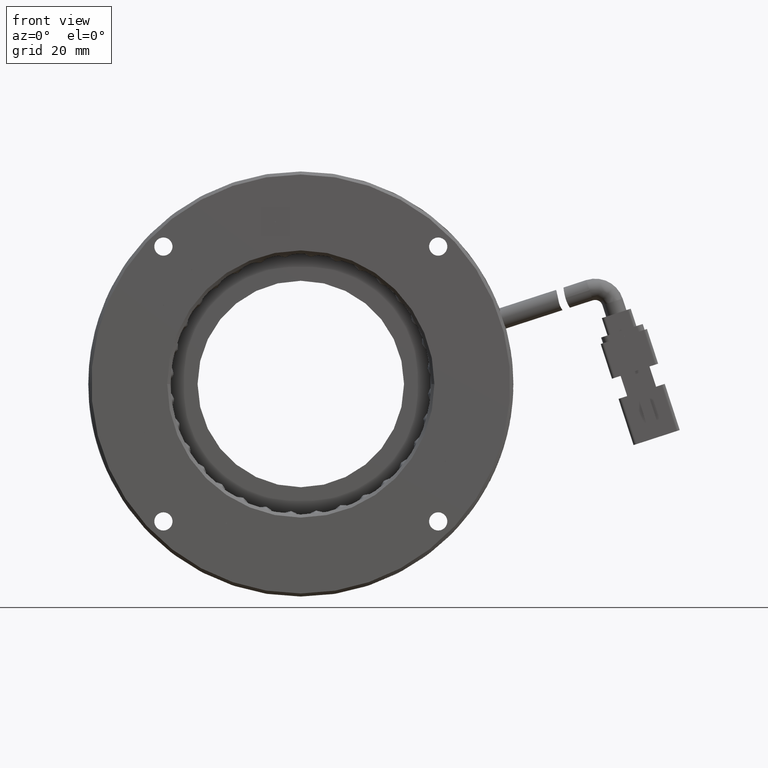
[diagram: clean part render]
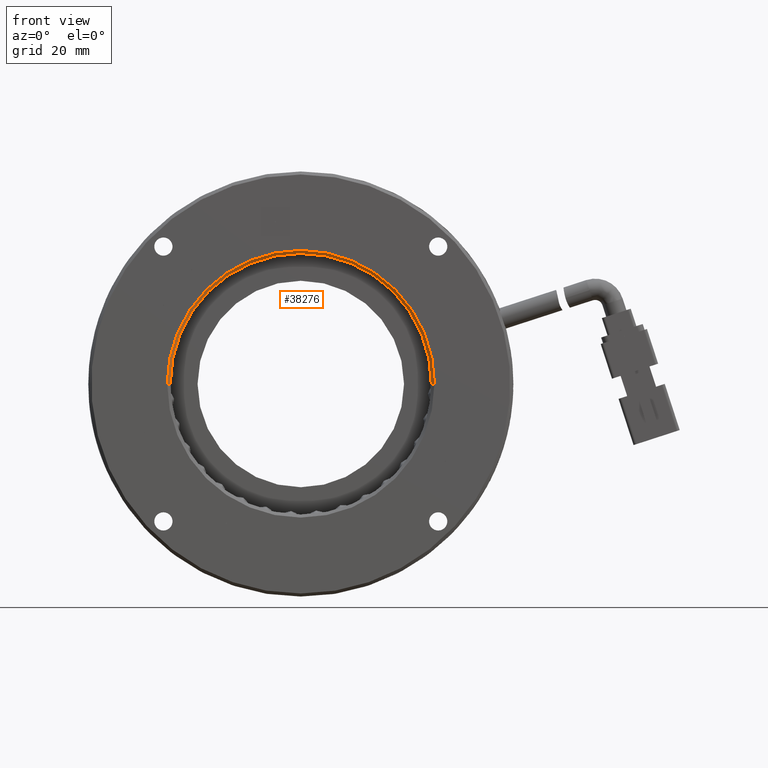
[diagram: same view with one face highlighted and labeled with its STEP entity id]
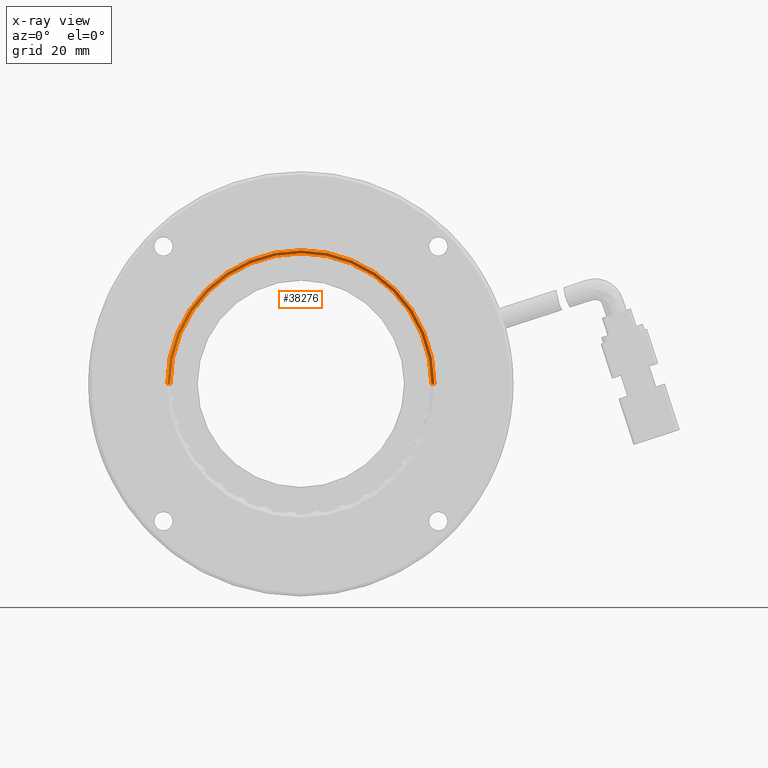
[diagram: x-ray of the same camera — body ghosted, the highlighted face saturated]
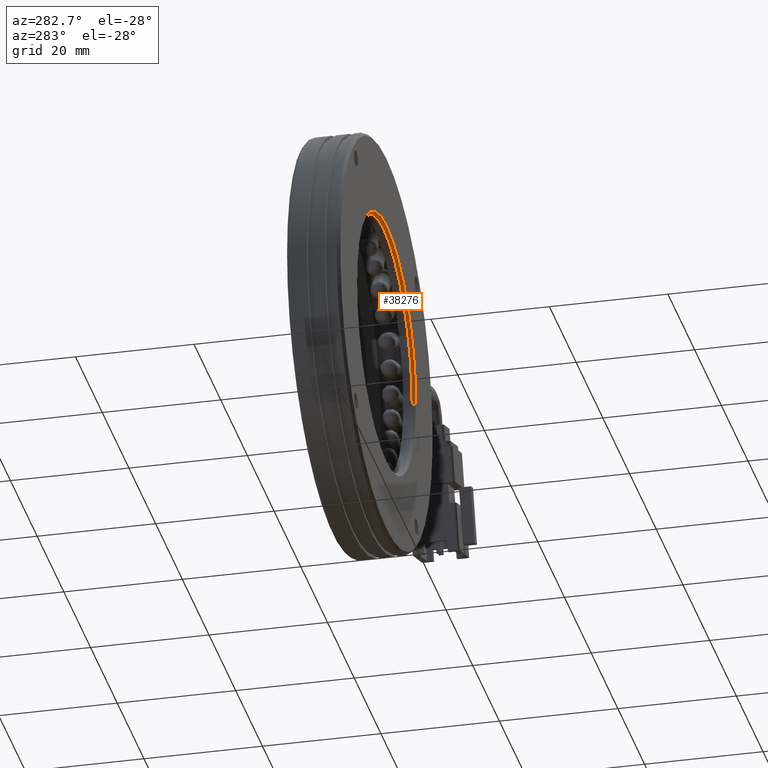
[diagram: same view with one face highlighted and labeled with its STEP entity id]
A machine part, front view. The second image highlights one B-rep face of the part: STEP entity #38276.
The next image is the same camera in x-ray: the body ghosted, the highlighted face saturated — about 0% of this face is hidden behind the body in this view.
A second angle (auxiliary view) of the same face is appended — the face is thin or edge-on in the first view.
In plain terms, the highlighted conical surface has half-angle 45 deg.
Its self-contained STEP definition (entity closure, byte-faithful):
#2677 = ORIENTED_EDGE ( 'NONE', *, *, #39413, .F. ) ;
#3210 = FACE_OUTER_BOUND ( 'NONE', #5450, .T. ) ;
#3448 = ORIENTED_EDGE ( 'NONE', *, *, #25605, .T. ) ;
#3782 = DIRECTION ( 'NONE',  ( 1.000000000000000000, -1.577021341797097600E-016, 0.0000000000000000000 ) ) ;
#4822 = CARTESIAN_POINT ( 'NONE',  ( 16.29070785509543000, 4.260202915404253300, 0.0000000000000000000 ) ) ;
#5057 = ORIENTED_EDGE ( 'NONE', *, *, #39107, .F. ) ;
#5168 = CARTESIAN_POINT ( 'NONE',  ( -27.70929214490455900, 4.260202915404260400, 2.694222958124176400E-015 ) ) ;
#5450 = EDGE_LOOP ( 'NONE', ( #5057, #10771, #2677, #3448, #35615 ) ) ;
#6749 = VERTEX_POINT ( 'NONE', #10425 ) ;
#7036 = LINE ( 'NONE', #11527, #35226 ) ;
#10015 = CIRCLE ( 'NONE', #28597, 21.99999999999999600 ) ;
#10425 = CARTESIAN_POINT ( 'NONE',  ( -27.20929214490456600, 4.760202915404257800, 2.663606788145493000E-015 ) ) ;
#10771 = ORIENTED_EDGE ( 'NONE', *, *, #12650, .F. ) ;
#11398 = CARTESIAN_POINT ( 'NONE',  ( -5.709292144904565300, 4.760202915404257800, 0.0000000000000000000 ) ) ;
#11527 = CARTESIAN_POINT ( 'NONE',  ( 16.29070785509543000, 4.260202915404253300, 0.0000000000000000000 ) ) ;
#11544 = VECTOR ( 'NONE', #34849, 1000.000000000000000 ) ;
#12522 = LINE ( 'NONE', #31754, #11544 ) ;
#12650 = EDGE_CURVE ( 'NONE', #36407, #6749, #36414, .T. ) ;
#13662 = DIRECTION ( 'NONE',  ( -1.577021341797097600E-016, -1.000000000000000000, 0.0000000000000000000 ) ) ;
#13839 = AXIS2_PLACEMENT_3D ( 'NONE', #11398, #33197, #14536 ) ;
#14536 = DIRECTION ( 'NONE',  ( 0.0000000000000000000, 0.0000000000000000000, -1.000000000000000000 ) ) ;
#17144 = AXIS2_PLACEMENT_3D ( 'NONE', #25318, #31635, #3782 ) ;
#17652 = DIRECTION ( 'NONE',  ( 0.7071067811865425800, -0.7071067811865525700, 0.0000000000000000000 ) ) ;
#18434 = CARTESIAN_POINT ( 'NONE',  ( -5.709292144904565300, 4.760202915404257800, 0.0000000000000000000 ) ) ;
#19839 = CARTESIAN_POINT ( 'NONE',  ( 15.79070785509543600, 4.760202915404257800, 0.0000000000000000000 ) ) ;
#21063 = VERTEX_POINT ( 'NONE', #5168 ) ;
#21577 = DIRECTION ( 'NONE',  ( 0.0000000000000000000, 0.0000000000000000000, -1.000000000000000000 ) ) ;
#23057 = CONICAL_SURFACE ( 'NONE', #17144, 21.99999999999999600, 0.7853981633974415100 ) ;
#23976 = VERTEX_POINT ( 'NONE', #4822 ) ;
#25318 = CARTESIAN_POINT ( 'NONE',  ( -5.709292144904565300, 4.260202915404256900, 0.0000000000000000000 ) ) ;
#25605 = EDGE_CURVE ( 'NONE', #32898, #23976, #7036, .T. ) ;
#28597 = AXIS2_PLACEMENT_3D ( 'NONE', #32340, #13662, #35435 ) ;
#31635 = DIRECTION ( 'NONE',  ( -1.577021341797097600E-016, -1.000000000000000000, 0.0000000000000000000 ) ) ;
#31754 = CARTESIAN_POINT ( 'NONE',  ( -27.70929214490455900, 4.260202915404260400, 2.694222958124176400E-015 ) ) ;
#31998 = AXIS2_PLACEMENT_3D ( 'NONE', #18434, #40281, #21577 ) ;
#32340 = CARTESIAN_POINT ( 'NONE',  ( -5.709292144904565300, 4.260202915404256900, 0.0000000000000000000 ) ) ;
#32898 = VERTEX_POINT ( 'NONE', #19839 ) ;
#33197 = DIRECTION ( 'NONE',  ( 0.0000000000000000000, -1.000000000000000000, 0.0000000000000000000 ) ) ;
#33678 = CARTESIAN_POINT ( 'NONE',  ( -5.709292144904562600, 4.760202915404257800, 21.50000000000000000 ) ) ;
#34849 = DIRECTION ( 'NONE',  ( -0.7071067811865428000, -0.7071067811865522400, 8.659560562354873700E-017 ) ) ;
#35226 = VECTOR ( 'NONE', #17652, 999.9999999999998900 ) ;
#35435 = DIRECTION ( 'NONE',  ( 1.000000000000000000, -1.577021341797097600E-016, 0.0000000000000000000 ) ) ;
#35615 = ORIENTED_EDGE ( 'NONE', *, *, #37793, .T. ) ;
#35868 = CIRCLE ( 'NONE', #13839, 21.50000000000000000 ) ;
#36407 = VERTEX_POINT ( 'NONE', #33678 ) ;
#36414 = CIRCLE ( 'NONE', #31998, 21.50000000000000000 ) ;
#37793 = EDGE_CURVE ( 'NONE', #23976, #21063, #10015, .T. ) ;
#38276 = ADVANCED_FACE ( 'NONE', ( #3210 ), #23057, .F. ) ;
#39107 = EDGE_CURVE ( 'NONE', #6749, #21063, #12522, .T. ) ;
#39413 = EDGE_CURVE ( 'NONE', #32898, #36407, #35868, .T. ) ;
#40281 = DIRECTION ( 'NONE',  ( 0.0000000000000000000, -1.000000000000000000, 0.0000000000000000000 ) ) ;